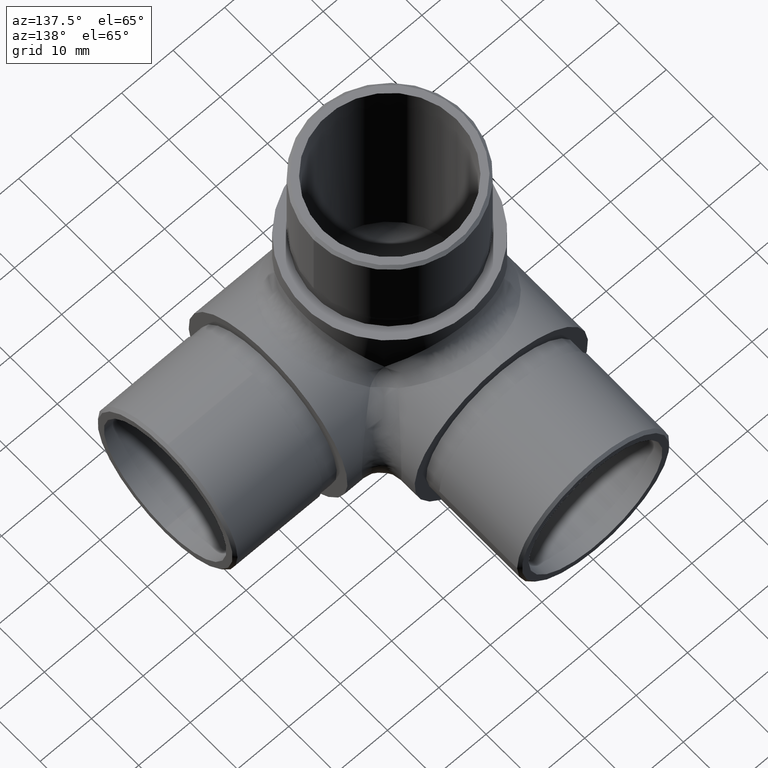
[diagram: clean part render]
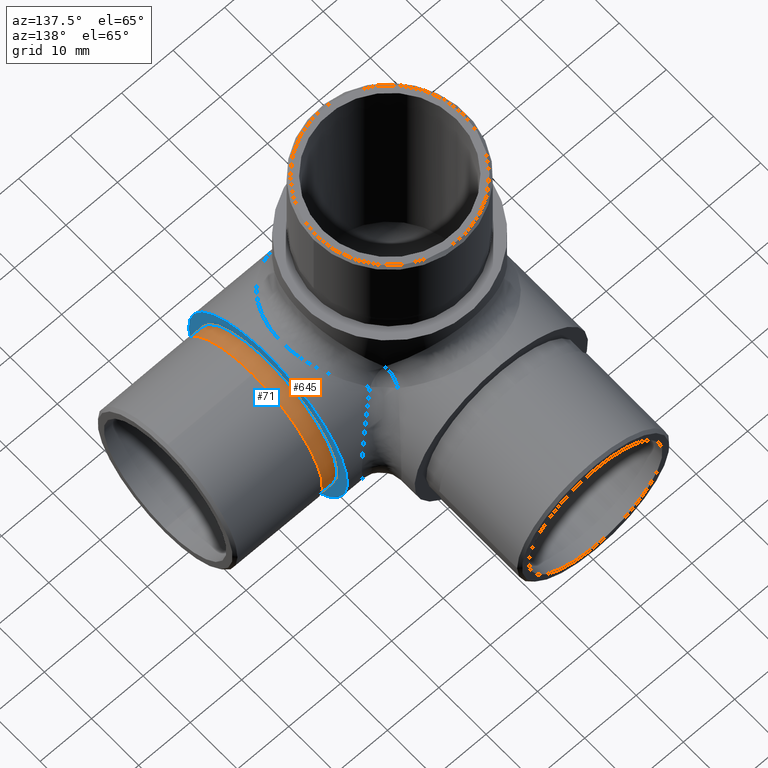
[diagram: same view with the hole feature highlighted: cylindrical wall and planar end face, labeled with their STEP entity ids]
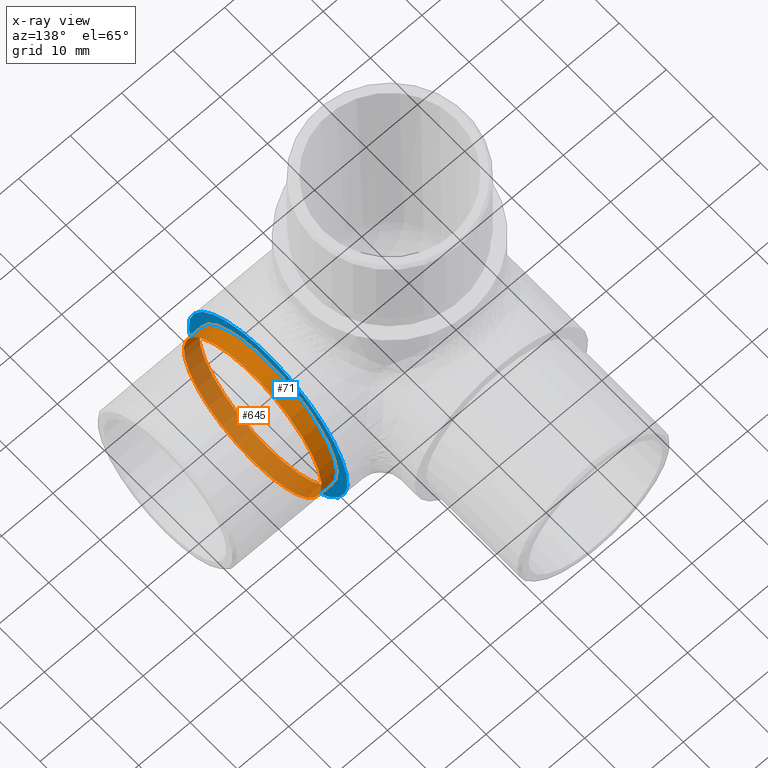
[diagram: x-ray of the same camera — body ghosted, the hole faces saturated]
A machine part, auxiliary view. The highlighted faces form one hole feature of diameter 29.2 mm: the cylindrical wall (entity #645, orange) and its adjacent planar end face (entity #71, blue) — they share a circular edge in the B-rep.
The next image is the same camera in x-ray (body ghosted, the hole faces saturated) — the bore reads through the body.
Wall:
#182 = CYLINDRICAL_SURFACE ( 'NONE', #985, 14.60000000000000100 ) ;
#193 = CARTESIAN_POINT ( 'NONE',  ( 23.64999999999999900, 16.85000000000000100, 16.84999999999999100 ) ) ;
#241 = FACE_OUTER_BOUND ( 'NONE', #701, .T. ) ;
#242 = DIRECTION ( 'NONE',  ( 4.752667057470704400E-016, 0.0000000000000000000, 1.000000000000000000 ) ) ;
#273 = ORIENTED_EDGE ( 'NONE', *, *, #1012, .T. ) ;
#277 = CARTESIAN_POINT ( 'NONE',  ( 26.64999999999999100, 16.85000000000000100, 2.249999999999989800 ) ) ;
#406 = AXIS2_PLACEMENT_3D ( 'NONE', #193, #450, #781 ) ;
#450 = DIRECTION ( 'NONE',  ( 1.000000000000000000, 0.0000000000000000000, 0.0000000000000000000 ) ) ;
#465 = DIRECTION ( 'NONE',  ( -4.752667057470704400E-016, 0.0000000000000000000, -1.000000000000000000 ) ) ;
#532 = VERTEX_POINT ( 'NONE', #277 ) ;
#621 = CARTESIAN_POINT ( 'NONE',  ( 23.64999999999999900, 16.85000000000000100, 2.249999999999989800 ) ) ;
#645 = ADVANCED_FACE ( 'NONE', ( #241, #801 ), #182, .T. ) ;
#701 = EDGE_LOOP ( 'NONE', ( #273 ) ) ;
#781 = DIRECTION ( 'NONE',  ( 0.0000000000000000000, 0.0000000000000000000, -1.000000000000000000 ) ) ;
#801 = FACE_OUTER_BOUND ( 'NONE', #885, .T. ) ;
#824 = DIRECTION ( 'NONE',  ( -1.000000000000000000, -0.0000000000000000000, 4.440892098500624700E-016 ) ) ;
#830 = CARTESIAN_POINT ( 'NONE',  ( 26.64999999999999500, 16.85000000000000100, 16.84999999999999100 ) ) ;
#874 = CIRCLE ( 'NONE', #913, 14.60000000000000000 ) ;
#885 = EDGE_LOOP ( 'NONE', ( #932 ) ) ;
#892 = CARTESIAN_POINT ( 'NONE',  ( 26.64999999999999900, 16.85000000000000100, 16.84999999999999100 ) ) ;
#913 = AXIS2_PLACEMENT_3D ( 'NONE', #892, #1046, #465 ) ;
#925 = EDGE_CURVE ( 'NONE', #1067, #1067, #964, .T. ) ;
#932 = ORIENTED_EDGE ( 'NONE', *, *, #925, .T. ) ;
#964 = CIRCLE ( 'NONE', #406, 14.60000000000000000 ) ;
#985 = AXIS2_PLACEMENT_3D ( 'NONE', #830, #824, #242 ) ;
#1012 = EDGE_CURVE ( 'NONE', #532, #532, #874, .T. ) ;
#1046 = DIRECTION ( 'NONE',  ( -1.000000000000000000, -0.0000000000000000000, 4.440892098500625200E-016 ) ) ;
#1067 = VERTEX_POINT ( 'NONE', #621 ) ;
End face:
#66 = FACE_OUTER_BOUND ( 'NONE', #802, .T. ) ;
#71 = ADVANCED_FACE ( 'NONE', ( #144, #66 ), #1011, .T. ) ;
#103 = AXIS2_PLACEMENT_3D ( 'NONE', #371, #444, #1029 ) ;
#144 = FACE_BOUND ( 'NONE', #255, .T. ) ;
#161 = CARTESIAN_POINT ( 'NONE',  ( 23.64999999999999900, 16.84999999999998700, 16.84999999999999800 ) ) ;
#193 = CARTESIAN_POINT ( 'NONE',  ( 23.64999999999999900, 16.85000000000000100, 16.84999999999999100 ) ) ;
#246 = VERTEX_POINT ( 'NONE', #447 ) ;
#255 = EDGE_LOOP ( 'NONE', ( #380 ) ) ;
#371 = CARTESIAN_POINT ( 'NONE',  ( 23.64999999999999900, 16.84999999999998700, 16.84999999999999800 ) ) ;
#380 = ORIENTED_EDGE ( 'NONE', *, *, #925, .F. ) ;
#406 = AXIS2_PLACEMENT_3D ( 'NONE', #193, #450, #781 ) ;
#444 = DIRECTION ( 'NONE',  ( 1.000000000000000000, 0.0000000000000000000, 0.0000000000000000000 ) ) ;
#447 = CARTESIAN_POINT ( 'NONE',  ( 23.64999999999999900, 16.84999999999998700, -3.469446951953614200E-015 ) ) ;
#450 = DIRECTION ( 'NONE',  ( 1.000000000000000000, 0.0000000000000000000, 0.0000000000000000000 ) ) ;
#513 = DIRECTION ( 'NONE',  ( 0.0000000000000000000, 0.0000000000000000000, -1.000000000000000000 ) ) ;
#529 = AXIS2_PLACEMENT_3D ( 'NONE', #161, #831, #513 ) ;
#621 = CARTESIAN_POINT ( 'NONE',  ( 23.64999999999999900, 16.85000000000000100, 2.249999999999989800 ) ) ;
#662 = CIRCLE ( 'NONE', #103, 16.85000000000000100 ) ;
#688 = ORIENTED_EDGE ( 'NONE', *, *, #957, .T. ) ;
#781 = DIRECTION ( 'NONE',  ( 0.0000000000000000000, 0.0000000000000000000, -1.000000000000000000 ) ) ;
#802 = EDGE_LOOP ( 'NONE', ( #688 ) ) ;
#831 = DIRECTION ( 'NONE',  ( 1.000000000000000000, 0.0000000000000000000, 0.0000000000000000000 ) ) ;
#925 = EDGE_CURVE ( 'NONE', #1067, #1067, #964, .T. ) ;
#957 = EDGE_CURVE ( 'NONE', #246, #246, #662, .T. ) ;
#964 = CIRCLE ( 'NONE', #406, 14.60000000000000000 ) ;
#1011 = PLANE ( 'NONE',  #529 ) ;
#1029 = DIRECTION ( 'NONE',  ( 0.0000000000000000000, 0.0000000000000000000, -1.000000000000000000 ) ) ;
#1067 = VERTEX_POINT ( 'NONE', #621 ) ;